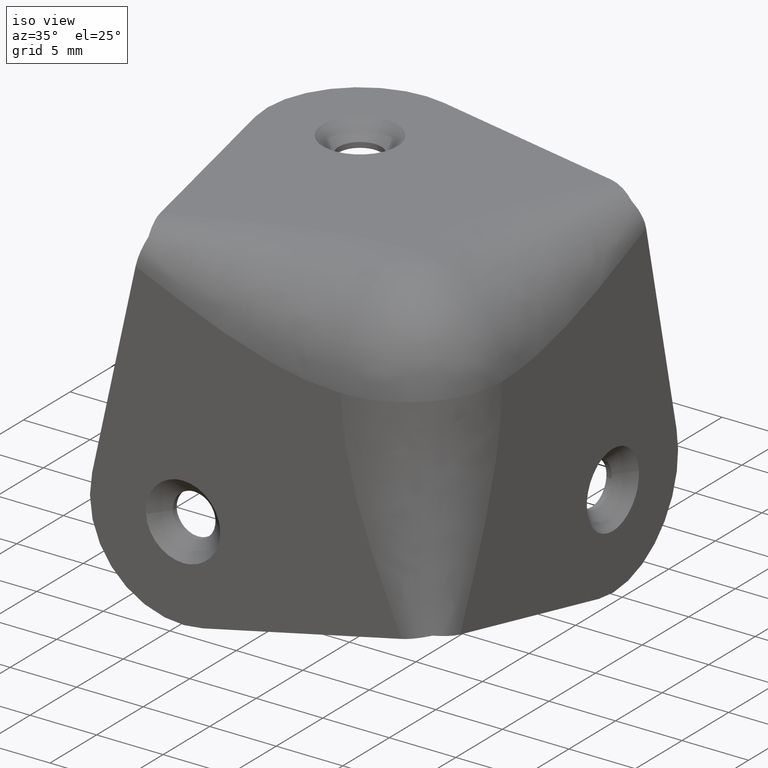
[diagram: clean part render]
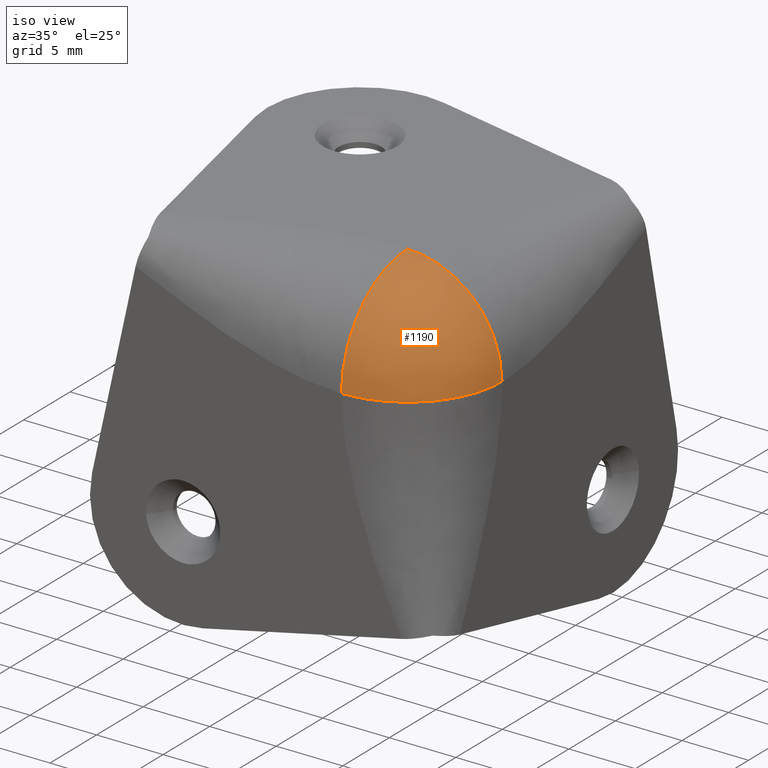
[diagram: same view with one face highlighted and labeled with its STEP entity id]
A machine part, iso view. The second image highlights one B-rep face of the part: STEP entity #1190.
In plain terms, the highlighted face is a freeform B-spline surface patch.
Its self-contained STEP definition (entity closure, byte-faithful):
#1057=CARTESIAN_POINT('',(-7.100000000000001,0.0,18.899999999999999));
#1058=VERTEX_POINT('',#1057);
#1059=CARTESIAN_POINT('',(-7.100000000000001,7.100000000000001,26.0));
#1060=VERTEX_POINT('',#1059);
#1061=CARTESIAN_POINT('',(-7.100000000000001,0.0,18.899999999999999));
#1062=CARTESIAN_POINT('',(-7.099999999999999,0.0,26.0));
#1063=CARTESIAN_POINT('',(-7.100000000000001,7.100000000000001,26.0));
#1071=(BOUNDED_CURVE()B_SPLINE_CURVE(2,(#1061,#1062,#1063),.UNSPECIFIED.,.F.,.U.)CURVE()GEOMETRIC_REPRESENTATION_ITEM()QUASI_UNIFORM_CURVE()RATIONAL_B_SPLINE_CURVE((1.0,0.707106781186548,1.0))REPRESENTATION_ITEM(''));
#1072=EDGE_CURVE('',#1058,#1060,#1071,.T.);
#1135=CARTESIAN_POINT('',(-4.070918868736917,2.142269593249006,14.818875557618641));
#1136=CARTESIAN_POINT('',(-1.251651746740859,2.546177012892089,16.420719568907163));
#1137=CARTESIAN_POINT('',(0.163835538419687,6.792639181270214,18.422520663696744));
#1138=CARTESIAN_POINT('',(-0.116648321944482,8.372041254631043,18.742804621200733));
#1139=CARTESIAN_POINT('',(-4.889802313648859,0.013719390072753,16.796838686865012));
#1140=CARTESIAN_POINT('',(-1.408763335139925,-0.259614684615002,19.712570933767520));
#1141=CARTESIAN_POINT('',(0.496809021133596,5.457102805436400,22.407456906237730));
#1142=CARTESIAN_POINT('',(0.098514618798225,7.652555955768412,22.479196272937411));
#1143=CARTESIAN_POINT('',(-8.956131527803185,0.013719390072753,19.672167966529198));
#1144=CARTESIAN_POINT('',(-7.036034445873218,-0.259614684615002,23.691652935534279));
#1145=CARTESIAN_POINT('',(-5.130462089599697,5.457102805436401,26.386538908004500));
#1146=CARTESIAN_POINT('',(-5.034925295762722,7.652555955768412,26.109086848534503));
#1147=CARTESIAN_POINT('',(-10.566386002009274,1.029670298749454,20.143087045700963));
#1148=CARTESIAN_POINT('',(-9.430429467331969,1.131454302608945,23.807775136684988));
#1149=CARTESIAN_POINT('',(-7.767833859522141,6.119241493558734,26.159040134115592));
#1150=CARTESIAN_POINT('',(-7.479314613572511,8.005160560200304,25.931842204158752));
#1158=(BOUNDED_SURFACE()B_SPLINE_SURFACE(2,2,((#1135,#1139,#1143,#1147),(#1136,#1140,#1144,#1148),(#1137,#1141,#1145,#1149),(#1138,#1142,#1146,#1150)),.UNSPECIFIED.,.F.,.F.,.U.)B_SPLINE_SURFACE_WITH_KNOTS((3,1,3),(3,1,3),(0.0,8.295351036779085,12.448023592880570),(0.0,7.878171284398134,12.996541694779410),.UNSPECIFIED.)GEOMETRIC_REPRESENTATION_ITEM()RATIONAL_B_SPLINE_SURFACE(((1.730100666610837,1.383870024872936,1.383870024872936,1.530013048060501),(1.346230641737901,1.0,1.0,1.146143023187565),(1.346230641737901,1.0,1.0,1.146143023187565),(1.442429526772398,1.096198885034497,1.096198885034497,1.242341908222061)))REPRESENTATION_ITEM('')SURFACE());
#1159=CARTESIAN_POINT('',(0.0,7.100000000000001,18.899999999999999));
#1160=VERTEX_POINT('',#1159);
#1161=CARTESIAN_POINT('',(-7.100000000000001,0.0,18.899999999999999));
#1162=CARTESIAN_POINT('',(0.0,0.0,18.899999999999974));
#1163=CARTESIAN_POINT('',(0.0,7.100000000000001,18.899999999999999));
#1171=(BOUNDED_CURVE()B_SPLINE_CURVE(2,(#1161,#1162,#1163),.UNSPECIFIED.,.F.,.U.)CURVE()GEOMETRIC_REPRESENTATION_ITEM()QUASI_UNIFORM_CURVE()RATIONAL_B_SPLINE_CURVE((1.0,0.707106781186548,1.0))REPRESENTATION_ITEM(''));
#1172=EDGE_CURVE('',#1058,#1160,#1171,.T.);
#1173=ORIENTED_EDGE('',*,*,#1172,.T.);
#1174=CARTESIAN_POINT('',(0.0,7.100000000000001,18.899999999999999));
#1175=CARTESIAN_POINT('',(0.0,7.099999999999984,26.0));
#1176=CARTESIAN_POINT('',(-7.100000000000001,7.100000000000001,26.0));
#1184=(BOUNDED_CURVE()B_SPLINE_CURVE(2,(#1174,#1175,#1176),.UNSPECIFIED.,.F.,.U.)CURVE()GEOMETRIC_REPRESENTATION_ITEM()QUASI_UNIFORM_CURVE()RATIONAL_B_SPLINE_CURVE((1.0,0.707106781186548,1.0))REPRESENTATION_ITEM(''));
#1185=EDGE_CURVE('',#1160,#1060,#1184,.T.);
#1186=ORIENTED_EDGE('',*,*,#1185,.T.);
#1187=ORIENTED_EDGE('',*,*,#1072,.F.);
#1188=EDGE_LOOP('',(#1173,#1186,#1187));
#1189=FACE_OUTER_BOUND('',#1188,.T.);
#1190=ADVANCED_FACE('',(#1189),#1158,.T.);